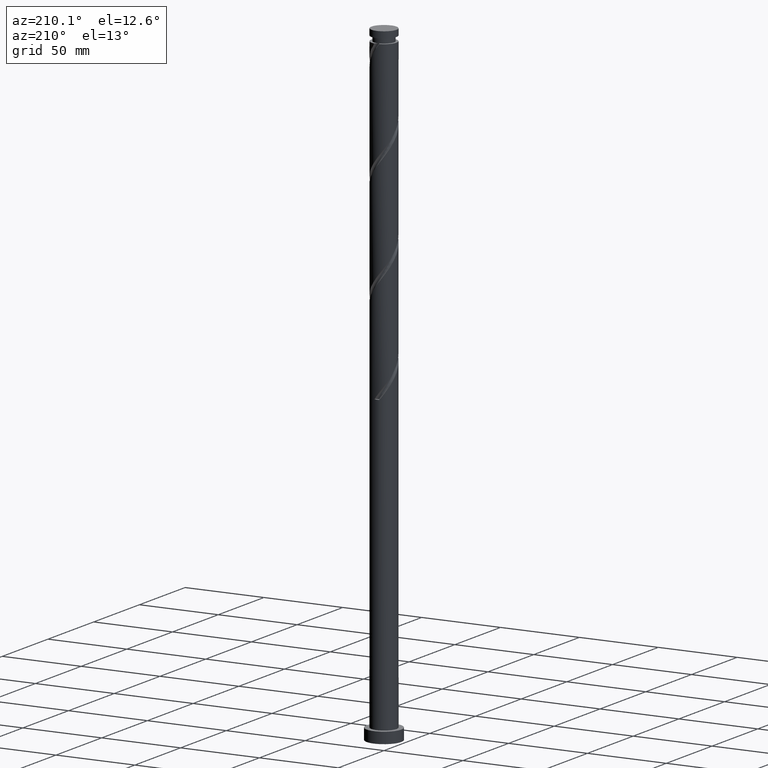
[diagram: clean part render]
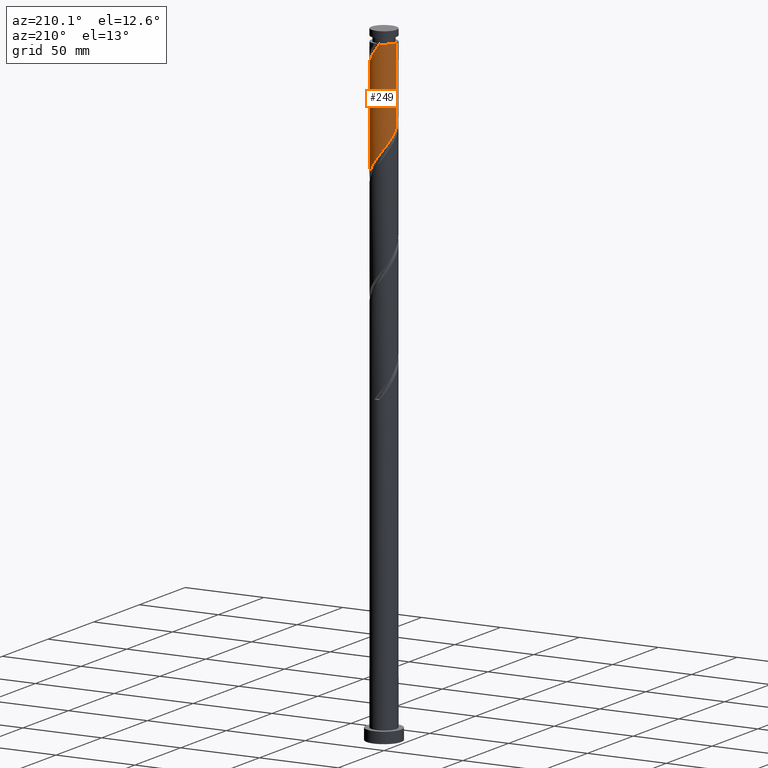
[diagram: same view with one face highlighted and labeled with its STEP entity id]
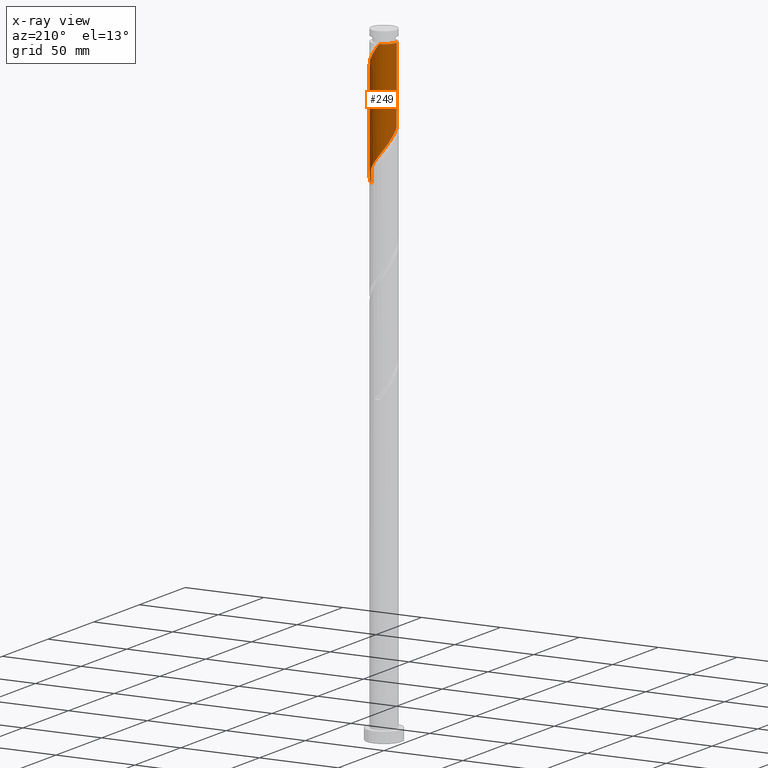
[diagram: x-ray of the same camera — body ghosted, the highlighted face saturated]
A machine part, auxiliary view. The second image highlights one B-rep face of the part: STEP entity #249.
The next image is the same camera in x-ray: the body ghosted, the highlighted face saturated — about 0% of this face is hidden behind the body in this view.
In plain terms, the highlighted cylindrical surface (edge-blend (fillet) strip) has radius 8 mm, axis along (-0, -0, -1).
Its self-contained STEP definition (entity closure, byte-faithful):
#55 = CARTESIAN_POINT ( 'NONE',  ( 6.464468613789585483, 4.787237946734987482, 318.3050160032979079 ) ) ;
#69 = CARTESIAN_POINT ( 'NONE',  ( 0.7679626948876935311, 8.007323829881674015, 327.1939048921867652 ) ) ;
#81 = CARTESIAN_POINT ( 'NONE',  ( 1.591979899370598917, 7.839999999999999858, 326.0827937810757362 ) ) ;
#102 = CARTESIAN_POINT ( 'NONE',  ( 8.000000000000014211, 0.3827519942939514030, 374.4658990631182292 ) ) ;
#151 = EDGE_CURVE ( 'NONE', #965, #1195, #1046, .T. ) ;
#212 = CARTESIAN_POINT ( 'NONE',  ( 4.085291986324416591, 6.929458204203540639, 384.9716826699647072 ) ) ;
#223 = CARTESIAN_POINT ( 'NONE',  ( 7.318527200449882031, 3.338586712009333990, 316.0827937810757362 ) ) ;
#249 = ADVANCED_FACE ( 'NONE', ( #414 ), #912, .T. ) ;
#278 = DIRECTION ( 'NONE',  ( -0.000000000000000000, -0.000000000000000000, -1.000000000000000000 ) ) ;
#322 = CARTESIAN_POINT ( 'NONE',  ( 8.000000000000000000, 9.797174393178825657E-16, 400.0000000000000000 ) ) ;
#365 = ORIENTED_EDGE ( 'NONE', *, *, #1961, .F. ) ;
#385 = CARTESIAN_POINT ( 'NONE',  ( 2.555303183033317271, 7.627412881187830784, 387.1939048921868221 ) ) ;
#391 = VECTOR ( 'NONE', #1710, 1000.000000000000000 ) ;
#397 = CARTESIAN_POINT ( 'NONE',  ( -8.000000000000001776, 4.753596103771601265E-15, 344.8749036912639099 ) ) ;
#409 = CARTESIAN_POINT ( 'NONE',  ( 7.883184911777977533, 1.600748969715827918, 376.0827937810755657 ) ) ;
#414 = FACE_OUTER_BOUND ( 'NONE', #1493, .T. ) ;
#418 = CARTESIAN_POINT ( 'NONE',  ( 3.958440846140556690, 7.002695744135690958, 322.7494604477424218 ) ) ;
#465 = ORIENTED_EDGE ( 'NONE', *, *, #728, .T. ) ;
#520 = VERTEX_POINT ( 'NONE', #1047 ) ;
#522 = CARTESIAN_POINT ( 'NONE',  ( 8.000000000000000000, 8.311318973889969874E-15, 311.5415703579304818 ) ) ;
#526 = CARTESIAN_POINT ( 'NONE',  ( -7.883184911777966875, 1.600748969715829029, 342.7494604477424787 ) ) ;
#537 = CARTESIAN_POINT ( 'NONE',  ( -2.555303183033309278, 7.627412881187821014, 331.6383493366312791 ) ) ;
#545 = CARTESIAN_POINT ( 'NONE',  ( -5.436733926407212536, 5.928652952465924386, 336.0827937810757362 ) ) ;
#551 = DIRECTION ( 'NONE',  ( -1.000000000000000000, 0.000000000000000000, 0.000000000000000000 ) ) ;
#558 = CARTESIAN_POINT ( 'NONE',  ( -0.7679626948876530079, 8.007323829881686450, 391.6383493366312223 ) ) ;
#567 = CARTESIAN_POINT ( 'NONE',  ( -1.734469275985939030, 7.809712948032135671, 330.5272382255201364 ) ) ;
#656 = CARTESIAN_POINT ( 'NONE',  ( -1.591979899370536744, 7.839999999999974101, 392.7494604477423081 ) ) ;
#672 = CARTESIAN_POINT ( 'NONE',  ( 7.585629115355297714, 2.541304964830861657, 314.9716826699645935 ) ) ;
#687 = CARTESIAN_POINT ( 'NONE',  ( 5.436733926407221418, 5.928652952465930603, 382.7494604477423650 ) ) ;
#699 = CARTESIAN_POINT ( 'NONE',  ( 7.852731030260713396, 1.744023217652395541, 313.8605715588534508 ) ) ;
#710 = CARTESIAN_POINT ( 'NONE',  ( 0.07283633702544377309, 7.999668422379072830, 390.5272382255200796 ) ) ;
#728 = EDGE_CURVE ( 'NONE', #1955, #1312, #1088, .T. ) ;
#827 = CARTESIAN_POINT ( 'NONE',  ( -4.761012956365806126, 6.429055578334728516, 334.9716826699646504 ) ) ;
#845 = ORIENTED_EDGE ( 'NONE', *, *, #1894, .F. ) ;
#850 = CARTESIAN_POINT ( 'NONE',  ( -8.000000000000000000, 0.000000000000000000, 400.0000000000000000 ) ) ;
#854 = CARTESIAN_POINT ( 'NONE',  ( -7.963458872121463195, 0.7637557148918372452, 343.8605715588535645 ) ) ;
#864 = CARTESIAN_POINT ( 'NONE',  ( 1.734469275985949466, 7.809712948032144553, 388.3050160032979647 ) ) ;
#874 = CARTESIAN_POINT ( 'NONE',  ( -3.320297584678856495, 7.278435542695678606, 332.7494604477424218 ) ) ;
#912 = CYLINDRICAL_SURFACE ( 'NONE', #1426, 8.000000000000000000 ) ;
#965 = VERTEX_POINT ( 'NONE', #1786 ) ;
#981 = ORIENTED_EDGE ( 'NONE', *, *, #151, .T. ) ;
#996 = CARTESIAN_POINT ( 'NONE',  ( 7.999999999999998224, 0.4557898995714739221, 312.1471616673150606 ) ) ;
#1006 = EDGE_CURVE ( 'NONE', #965, #520, #1321, .T. ) ;
#1020 = CARTESIAN_POINT ( 'NONE',  ( 5.327881728744660705, 6.026663911471989543, 320.5272382255201933 ) ) ;
#1029 = CARTESIAN_POINT ( 'NONE',  ( 7.378103982728165811, 3.204775068141452632, 378.3050160032979647 ) ) ;
#1032 = DIRECTION ( 'NONE',  ( -1.000000000000000000, 0.000000000000000000, 0.000000000000000000 ) ) ;
#1045 = ORIENTED_EDGE ( 'NONE', *, *, #1006, .F. ) ;
#1046 = CIRCLE ( 'NONE', #1595, 7.999999999999965361 ) ;
#1047 = CARTESIAN_POINT ( 'NONE',  ( -8.000000000000001776, 4.753596103771601265E-15, 344.8749036912639099 ) ) ;
#1088 = LINE ( 'NONE', #322, #391 ) ;
#1097 =( BOUNDED_CURVE ( )  B_SPLINE_CURVE ( 2, ( #1812, #102, #1160, #409, #1455, #1029, #1782, #1486, #1771, #687, #1634, #212, #1333, #385, #864, #1621, #710, #558, #1917 ),
 .UNSPECIFIED., .F., .T. ) 
 B_SPLINE_CURVE_WITH_KNOTS ( ( 3, 2, 2, 2, 2, 2, 2, 2, 2, 3 ),
 ( 0.6795286012773110729, 0.6833333333333333481, 0.6916666666666665408, 0.6999999999999998446, 0.7083333333333331483, 0.7166666666666664520, 0.7249999999999997558, 0.7333333333333331705, 0.7416666666666663632, 0.7499999999999996669 ),
 .UNSPECIFIED. ) 
 CURVE ( )  GEOMETRIC_REPRESENTATION_ITEM ( )  RATIONAL_B_SPLINE_CURVE ( ( 0.9066196499552203747, 0.9068171577856329879, 0.9090909090909321533, 0.9041108139711804270, 0.9090909090909321533, 0.9041108139711804270, 0.9090909090909321533, 0.9041108139711804270, 0.9090909090909321533, 0.9041108139711804270, 0.9090909090909321533, 0.9041108139711804270, 0.9090909090909321533, 0.9041108139711804270, 0.9090909090909321533, 0.9041108139711804270, 0.9090909090909321533, 0.9041108139711806491, 0.9090909090909319312 ) ) 
 REPRESENTATION_ITEM ( '' )  );
#1106 = VECTOR ( 'NONE', #1423, 1000.000000000000000 ) ;
#1150 = CARTESIAN_POINT ( 'NONE',  ( -7.630644447253058793, 2.402762018928644050, 341.6383493366312791 ) ) ;
#1160 = CARTESIAN_POINT ( 'NONE',  ( 7.963458872121475629, 0.7637557148918298067, 374.9716826699646504 ) ) ;
#1165 =( BOUNDED_CURVE ( )  B_SPLINE_CURVE ( 2, ( #397, #1941, #854, #526, #1150, #1949, #1171, #1802, #1184, #545, #827, #1301, #874, #537, #567, #1501, #1929, #69, #81, #1325, #1479, #418, #1960, #1020, #1315, #55, #1196, #223, #672, #699, #1609, #996, #1643 ),
 .UNSPECIFIED., .F., .T. ) 
 B_SPLINE_CURVE_WITH_KNOTS ( ( 3, 2, 2, 2, 2, 2, 2, 2, 2, 2, 2, 2, 2, 2, 2, 2, 3 ),
 ( 0.4295286012773114059, 0.4333333333333333481, 0.4416666666666666519, 0.4500000000000000111, 0.4583333333333333148, 0.4666666666666666741, 0.4749999999999999778, 0.4833333333333333370, 0.4916666666666666408, 0.5000000000000000000, 0.5083333333333333037, 0.5166666666666667185, 0.5250000000000000222, 0.5333333333333333259, 0.5416666666666666297, 0.5500000000000000444, 0.5545286012773112949 ),
 .UNSPECIFIED. ) 
 CURVE ( )  GEOMETRIC_REPRESENTATION_ITEM ( )  RATIONAL_B_SPLINE_CURVE ( ( 0.9066196499552144905, 0.9068171577856272147, 0.9090909090909261581, 0.9041108139711744318, 0.9090909090909261581, 0.9041108139711744318, 0.9090909090909261581, 0.9041108139711744318, 0.9090909090909261581, 0.9041108139711744318, 0.9090909090909261581, 0.9041108139711744318, 0.9090909090909261581, 0.9041108139711744318, 0.9090909090909261581, 0.9041108139711744318, 0.9090909090909261581, 0.9041108139711744318, 0.9090909090909261581, 0.9041108139711744318, 0.9090909090909261581, 0.9041108139711744318, 0.9090909090909261581, 0.9041108139711744318, 0.9090909090909261581, 0.9041108139711744318, 0.9090909090909261581, 0.9041108139711744318, 0.9090909090909261581, 0.9041108139711744318, 0.9090909090909261581, 0.9063845652764734862, 0.9066196499552146015 ) ) 
 REPRESENTATION_ITEM ( '' )  );
#1171 = CARTESIAN_POINT ( 'NONE',  ( -6.964334244145168995, 3.936756093006895885, 339.4161271144091074 ) ) ;
#1184 = CARTESIAN_POINT ( 'NONE',  ( -5.993649215984697243, 5.298695035169130207, 337.1939048921868789 ) ) ;
#1195 = VERTEX_POINT ( 'NONE', #656 ) ;
#1196 = CARTESIAN_POINT ( 'NONE',  ( 6.891497907119731536, 4.062912329372162290, 317.1939048921869357 ) ) ;
#1210 = DIRECTION ( 'NONE',  ( -0.000000000000000000, -0.000000000000000000, -1.000000000000000000 ) ) ;
#1301 = CARTESIAN_POINT ( 'NONE',  ( -4.085291986324403268, 6.929458204203534422, 333.8605715588535077 ) ) ;
#1312 = VERTEX_POINT ( 'NONE', #522 ) ;
#1315 = CARTESIAN_POINT ( 'NONE',  ( 5.896175171267119985, 5.406950929103494730, 319.4161271144089937 ) ) ;
#1321 = LINE ( 'NONE', #850, #1106 ) ;
#1325 = CARTESIAN_POINT ( 'NONE',  ( 2.415997103853506189, 7.672676170118322148, 324.9716826699647072 ) ) ;
#1333 = CARTESIAN_POINT ( 'NONE',  ( 3.320297584678864045, 7.278435542695687488, 386.0827937810757362 ) ) ;
#1377 = CARTESIAN_POINT ( 'NONE',  ( 0.000000000000000000, 0.000000000000000000, 400.0000000000000000 ) ) ;
#1423 = DIRECTION ( 'NONE',  ( -0.000000000000000000, -0.000000000000000000, -1.000000000000000000 ) ) ;
#1426 = AXIS2_PLACEMENT_3D ( 'NONE', #1377, #278, #551 ) ;
#1455 = CARTESIAN_POINT ( 'NONE',  ( 7.630644447253070339, 2.402762018928641830, 377.1939048921868221 ) ) ;
#1479 = CARTESIAN_POINT ( 'NONE',  ( 3.187218974997031218, 7.337685957127007441, 323.8605715588535077 ) ) ;
#1486 = CARTESIAN_POINT ( 'NONE',  ( 6.550564505562199713, 4.668737117872338693, 380.5272382255200796 ) ) ;
#1493 = EDGE_LOOP ( 'NONE', ( #845, #465, #365, #1045, #981 ) ) ;
#1501 = CARTESIAN_POINT ( 'NONE',  ( -0.9136353689385701138, 7.992013014876450328, 329.4161271144089937 ) ) ;
#1595 = AXIS2_PLACEMENT_3D ( 'NONE', #1967, #1210, #1032 ) ;
#1609 = CARTESIAN_POINT ( 'NONE',  ( 7.948231931362837344, 0.9086303787922764830, 312.7494604477423081 ) ) ;
#1621 = CARTESIAN_POINT ( 'NONE',  ( 0.9136353689385744437, 7.992013014876460097, 389.4161271144089937 ) ) ;
#1634 = CARTESIAN_POINT ( 'NONE',  ( 4.761012956365819448, 6.429055578334734733, 383.8605715588535645 ) ) ;
#1643 = CARTESIAN_POINT ( 'NONE',  ( 8.000000000000000000, 8.311318973889969874E-15, 311.5415703579304818 ) ) ;
#1654 = CARTESIAN_POINT ( 'NONE',  ( 8.000000000000010658, -1.584532034590523171E-15, 373.9573505375541345 ) ) ;
#1710 = DIRECTION ( 'NONE',  ( -0.000000000000000000, -0.000000000000000000, -1.000000000000000000 ) ) ;
#1771 = CARTESIAN_POINT ( 'NONE',  ( 5.993649215984714118, 5.298695035169133760, 381.6383493366313360 ) ) ;
#1782 = CARTESIAN_POINT ( 'NONE',  ( 6.964334244145181430, 3.936756093006899437, 379.4161271144091074 ) ) ;
#1786 = CARTESIAN_POINT ( 'NONE',  ( -7.999999999999965361, 0.000000000000000000, 392.7494604477424218 ) ) ;
#1802 = CARTESIAN_POINT ( 'NONE',  ( -6.550564505562185502, 4.668737117872337805, 338.3050160032979647 ) ) ;
#1812 = CARTESIAN_POINT ( 'NONE',  ( 8.000000000000010658, -1.584532034590523171E-15, 373.9573505375541345 ) ) ;
#1894 = EDGE_CURVE ( 'NONE', #1955, #1195, #1097, .T. ) ;
#1917 = CARTESIAN_POINT ( 'NONE',  ( -1.591979899370536522, 7.839999999999974101, 392.7494604477423650 ) ) ;
#1929 = CARTESIAN_POINT ( 'NONE',  ( -0.07283633702543784727, 7.999668422379062172, 328.3050160032978511 ) ) ;
#1941 = CARTESIAN_POINT ( 'NONE',  ( -8.000000000000001776, 0.3827519942939944242, 344.3663551656999289 ) ) ;
#1949 = CARTESIAN_POINT ( 'NONE',  ( -7.378103982728151600, 3.204775068141456185, 340.5272382255201933 ) ) ;
#1955 = VERTEX_POINT ( 'NONE', #1654 ) ;
#1960 = CARTESIAN_POINT ( 'NONE',  ( 4.643161287442612029, 6.514679827803838030, 321.6383493366312223 ) ) ;
#1961 = EDGE_CURVE ( 'NONE', #520, #1312, #1165, .T. ) ;
#1967 = CARTESIAN_POINT ( 'NONE',  ( 0.000000000000000000, 0.000000000000000000, 392.7494604477424218 ) ) ;